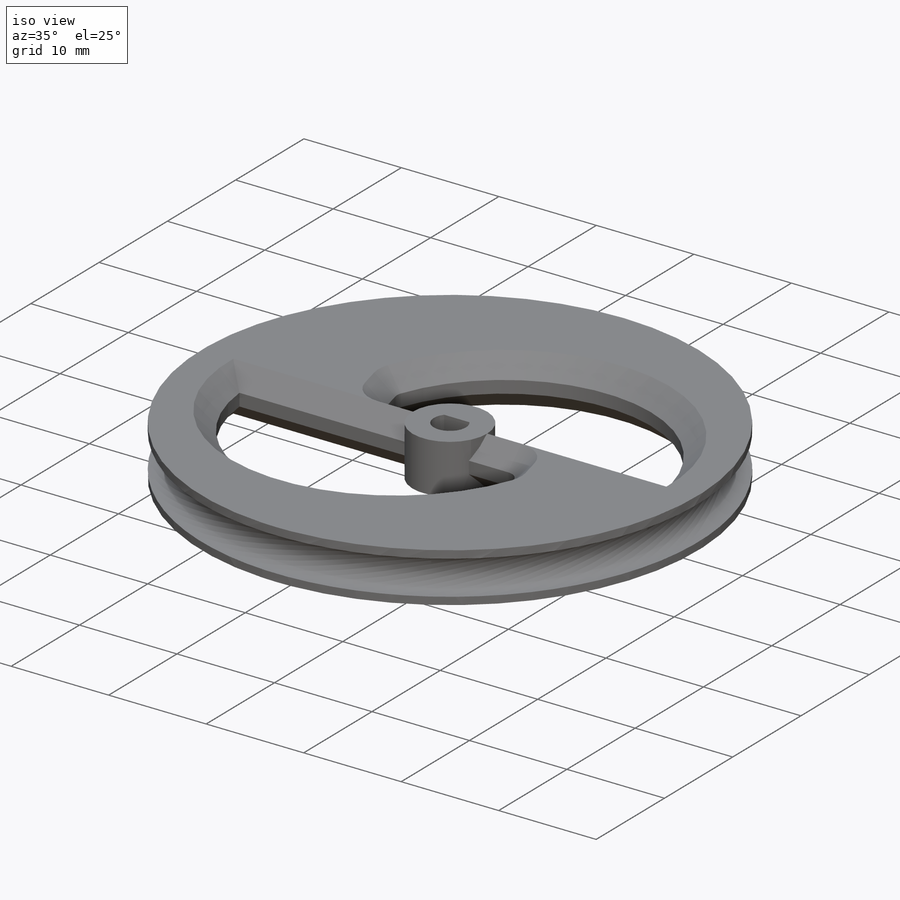
[diagram: iso view]
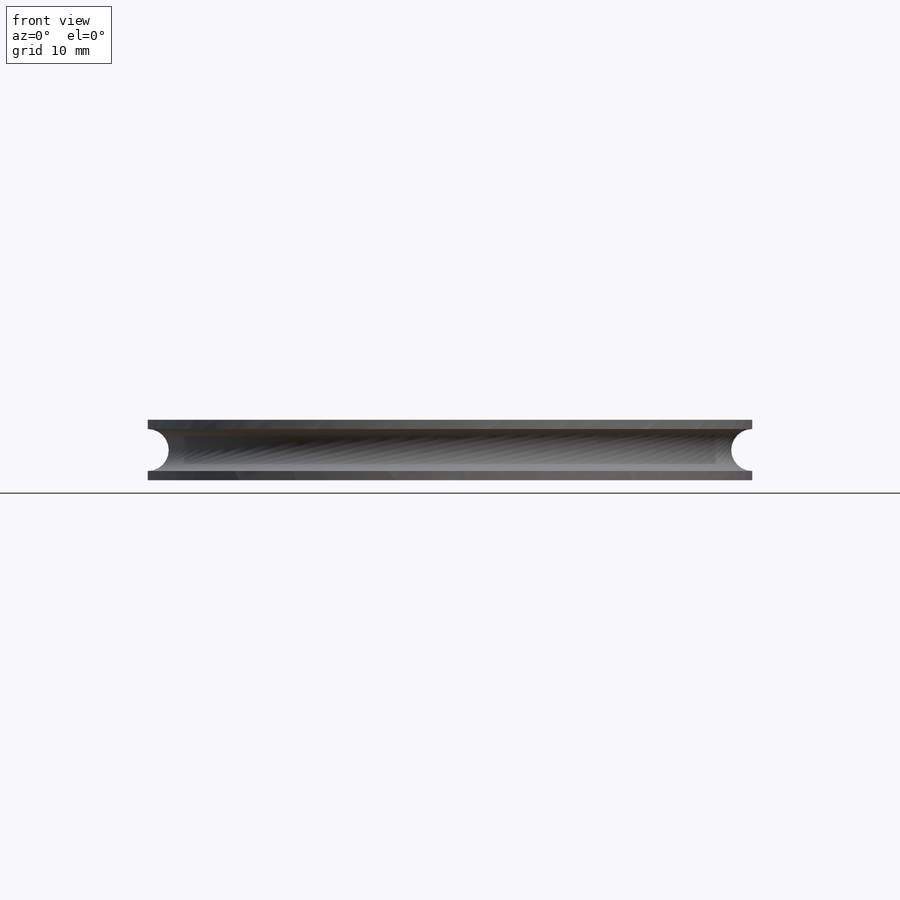
[diagram: front view]
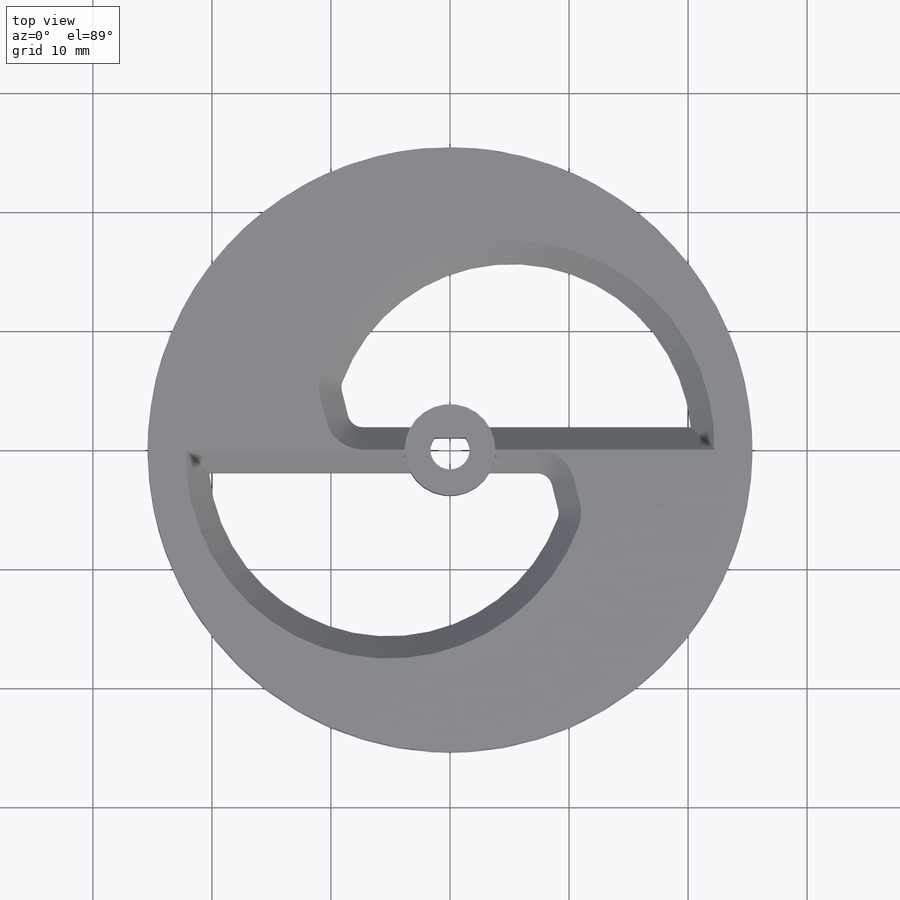
[diagram: top view]
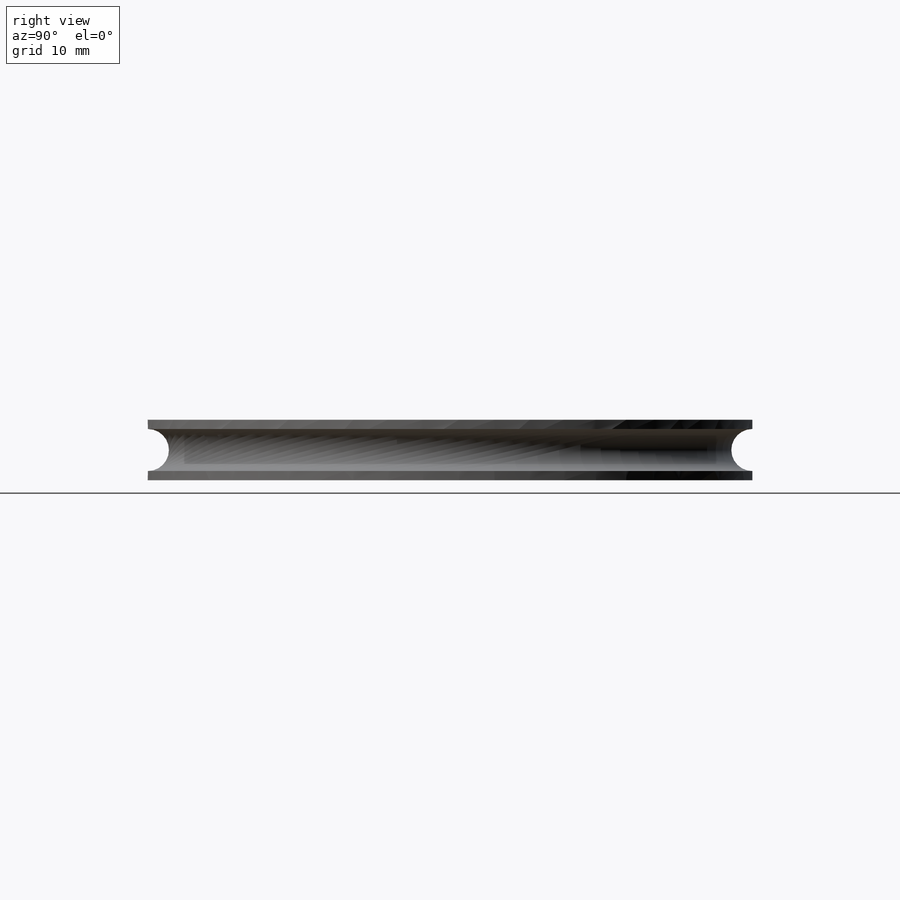
[diagram: right view]
SOLIDWORKS PART (.sldprt)
format: sldprt  version: not decoded by parser v0  size: 312,832 bytes
history: native  units: mm
features: sketch x4, cut_extrude x2, fillet x2, chamfer x2, pattern_circular x2, cut_revolve x2, material x1, extrude x1 (+13 scaffold rows collapsed)
feature tree (29):
  scaffold x13  (default folders/planes/origin — collapsed)
  material  "Material <not specified>"
  sketch  "Sketch1"  dims[D1=50.8mm]
  extrude  "Boss-Extrude1"  Depth=5.08mm
  sketch  "Sketch2"  dims[c1.D1=3.0mm c1.D2=~2.146313mm c1.D3=~6.295852mm c2.D1=1.016mm]
  cut_extrude  "Cut-Extrude1"  Depth=5.08mm
  sketch  "Sketch3"  dims[c1.D1=7.62mm c1.D2=40.64mm c1.D3=~16.815865mm c1.D4=1.905mm c1.D5=1.905mm c1.D6=1.905mm c2.D3=7.62mm]
  cut_extrude  "Cut-Extrude2"  Depth=5.08mm
  fillet  "Fillet3"  Radius=1.27mm
  fillet  "Fillet4"  Radius=1.27mm
  chamfer  "Chamfer2"  Distance=1.905mm Angle=45deg
  pattern_circular  "CirPattern4"  Count=2 Angle=180deg
  chamfer  "Chamfer3"  Distance=1.905mm Angle=45deg
  sketch  "Sketch5"  dims[D1=1.7653mm D2=3.5306mm]
  cut_revolve  "Cut-Revolve2"  Angle=360deg
  cut_revolve  "Axis1"  [1 undecoded]
  pattern_circular  "CirPattern1"  Count=2 Angle=180deg
decode coverage: 14 of 15 modeling features carry decoded parameters
note: ~ marks probable driven/reference dimensions
note: 1 parameter value undecoded
note: suppression state not decoded; provenance and decode notes live in map.json
